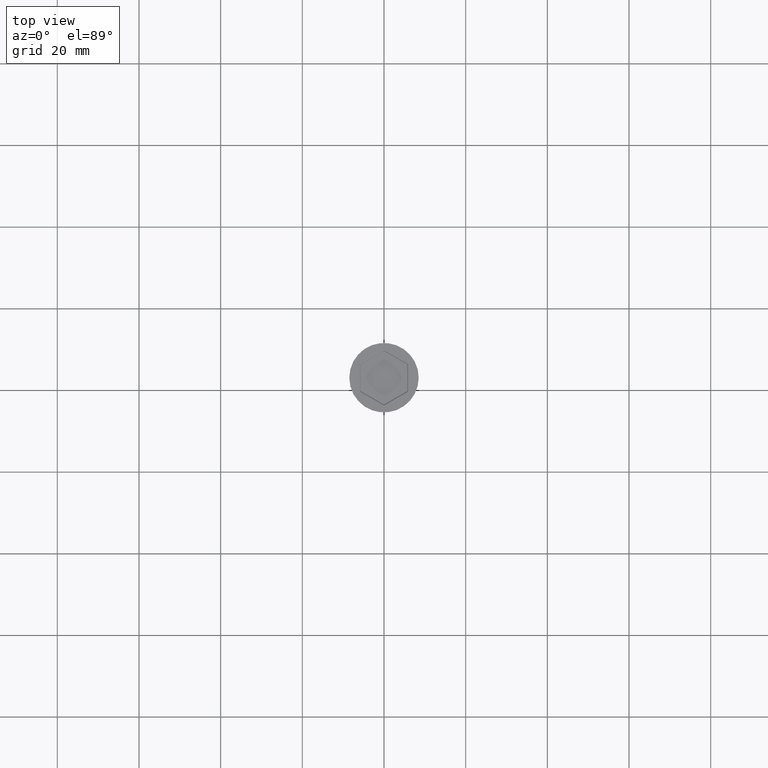
[diagram: clean part render]
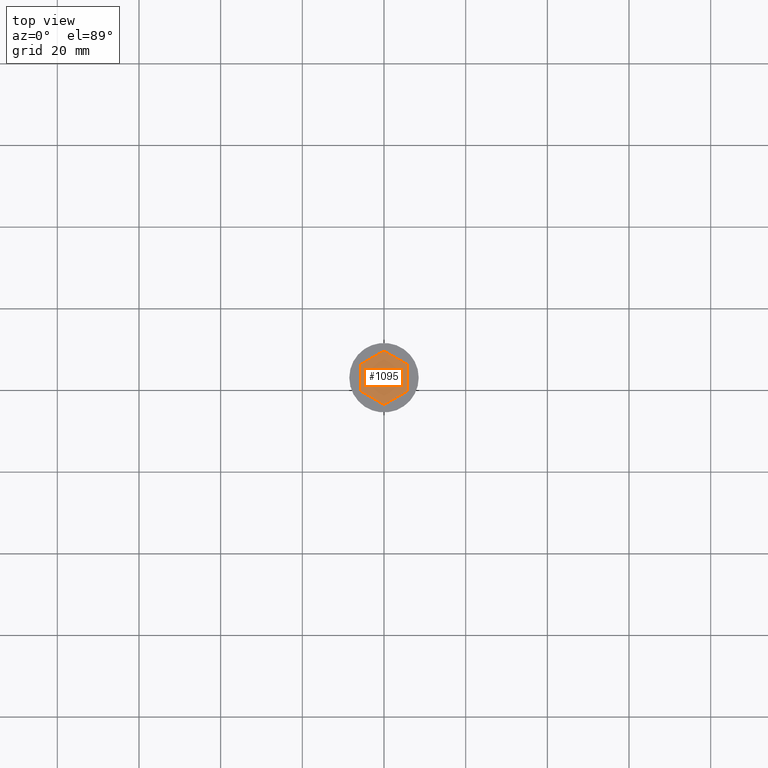
[diagram: same view with one face highlighted and labeled with its STEP entity id]
A machine part, top view. The second image highlights one B-rep face of the part: STEP entity #1095.
In plain terms, the highlighted planar face has unit normal (-0, 0, 1).
Its self-contained STEP definition (entity closure, byte-faithful):
#7 = DIRECTION ( 'NONE',  ( -0.8660254037844385966, -0.4999999999999999445, 0.000000000000000000 ) ) ;
#17 = LINE ( 'NONE', #715, #516 ) ;
#21 = VECTOR ( 'NONE', #1488, 1000.000000000000000 ) ;
#32 = VERTEX_POINT ( 'NONE', #116 ) ;
#77 = CARTESIAN_POINT ( 'NONE',  ( 5.699999999999997513, -3.290896534380868488, -2.000000000000000000 ) ) ;
#100 = CARTESIAN_POINT ( 'NONE',  ( -5.699999999999999289, 3.290896534380865823, -2.000000000000000000 ) ) ;
#116 = CARTESIAN_POINT ( 'NONE',  ( -4.336808689942017736E-16, 6.581793068761731647, -2.000000000000000000 ) ) ;
#130 = DIRECTION ( 'NONE',  ( 0.8660254037844387076, 0.4999999999999998890, 0.000000000000000000 ) ) ;
#216 = EDGE_LOOP ( 'NONE', ( #648, #420, #1458, #1395, #862, #319 ) ) ;
#319 = ORIENTED_EDGE ( 'NONE', *, *, #882, .T. ) ;
#321 = VERTEX_POINT ( 'NONE', #833 ) ;
#343 = PLANE ( 'NONE',  #781 ) ;
#399 = VECTOR ( 'NONE', #7, 1000.000000000000114 ) ;
#420 = ORIENTED_EDGE ( 'NONE', *, *, #1014, .T. ) ;
#428 = VERTEX_POINT ( 'NONE', #943 ) ;
#516 = VECTOR ( 'NONE', #130, 1000.000000000000000 ) ;
#520 = DIRECTION ( 'NONE',  ( -1.317819823453648788E-16, -1.000000000000000000, 0.000000000000000000 ) ) ;
#531 = CARTESIAN_POINT ( 'NONE',  ( 5.699999999999997513, -3.290896534380868488, -2.000000000000000000 ) ) ;
#540 = VECTOR ( 'NONE', #778, 1000.000000000000114 ) ;
#595 = LINE ( 'NONE', #1070, #1413 ) ;
#610 = CARTESIAN_POINT ( 'NONE',  ( 0.000000000000000000, 0.000000000000000000, -2.000000000000000000 ) ) ;
#625 = LINE ( 'NONE', #1108, #880 ) ;
#648 = ORIENTED_EDGE ( 'NONE', *, *, #1002, .T. ) ;
#655 = VERTEX_POINT ( 'NONE', #531 ) ;
#656 = CARTESIAN_POINT ( 'NONE',  ( 5.700000000000000178, 3.290896534380866711, -2.000000000000000000 ) ) ;
#707 = DIRECTION ( 'NONE',  ( 1.000000000000000000, 0.000000000000000000, 0.000000000000000000 ) ) ;
#715 = CARTESIAN_POINT ( 'NONE',  ( -1.301042606982605321E-15, -6.581793068761733423, -2.000000000000000000 ) ) ;
#722 = DIRECTION ( 'NONE',  ( -0.000000000000000000, 0.000000000000000000, 1.000000000000000000 ) ) ;
#728 = VERTEX_POINT ( 'NONE', #100 ) ;
#770 = LINE ( 'NONE', #1373, #399 ) ;
#778 = DIRECTION ( 'NONE',  ( -0.8660254037844387076, 0.4999999999999997224, 0.000000000000000000 ) ) ;
#781 = AXIS2_PLACEMENT_3D ( 'NONE', #610, #722, #707 ) ;
#833 = CARTESIAN_POINT ( 'NONE',  ( 5.700000000000000178, 3.290896534380866711, -2.000000000000000000 ) ) ;
#862 = ORIENTED_EDGE ( 'NONE', *, *, #1193, .T. ) ;
#880 = VECTOR ( 'NONE', #520, 1000.000000000000000 ) ;
#882 = EDGE_CURVE ( 'NONE', #655, #321, #1504, .T. ) ;
#909 = LINE ( 'NONE', #656, #540 ) ;
#943 = CARTESIAN_POINT ( 'NONE',  ( -1.301042606982605321E-15, -6.581793068761733423, -2.000000000000000000 ) ) ;
#959 = DIRECTION ( 'NONE',  ( 0.8660254037844385966, -0.5000000000000000000, 0.000000000000000000 ) ) ;
#1002 = EDGE_CURVE ( 'NONE', #321, #32, #909, .T. ) ;
#1014 = EDGE_CURVE ( 'NONE', #32, #728, #770, .T. ) ;
#1070 = CARTESIAN_POINT ( 'NONE',  ( -5.700000000000000178, -3.290896534380866711, -2.000000000000000000 ) ) ;
#1095 = ADVANCED_FACE ( 'NONE', ( #1159 ), #343, .T. ) ;
#1108 = CARTESIAN_POINT ( 'NONE',  ( -5.699999999999999289, 3.290896534380865823, -2.000000000000000000 ) ) ;
#1145 = EDGE_CURVE ( 'NONE', #1255, #428, #595, .T. ) ;
#1159 = FACE_OUTER_BOUND ( 'NONE', #216, .T. ) ;
#1193 = EDGE_CURVE ( 'NONE', #428, #655, #17, .T. ) ;
#1255 = VERTEX_POINT ( 'NONE', #1336 ) ;
#1306 = EDGE_CURVE ( 'NONE', #728, #1255, #625, .T. ) ;
#1336 = CARTESIAN_POINT ( 'NONE',  ( -5.700000000000000178, -3.290896534380866711, -2.000000000000000000 ) ) ;
#1373 = CARTESIAN_POINT ( 'NONE',  ( -4.336808689942017736E-16, 6.581793068761731647, -2.000000000000000000 ) ) ;
#1395 = ORIENTED_EDGE ( 'NONE', *, *, #1145, .T. ) ;
#1413 = VECTOR ( 'NONE', #959, 1000.000000000000227 ) ;
#1458 = ORIENTED_EDGE ( 'NONE', *, *, #1306, .T. ) ;
#1488 = DIRECTION ( 'NONE',  ( 3.953459470360945130E-16, 1.000000000000000000, 0.000000000000000000 ) ) ;
#1504 = LINE ( 'NONE', #77, #21 ) ;